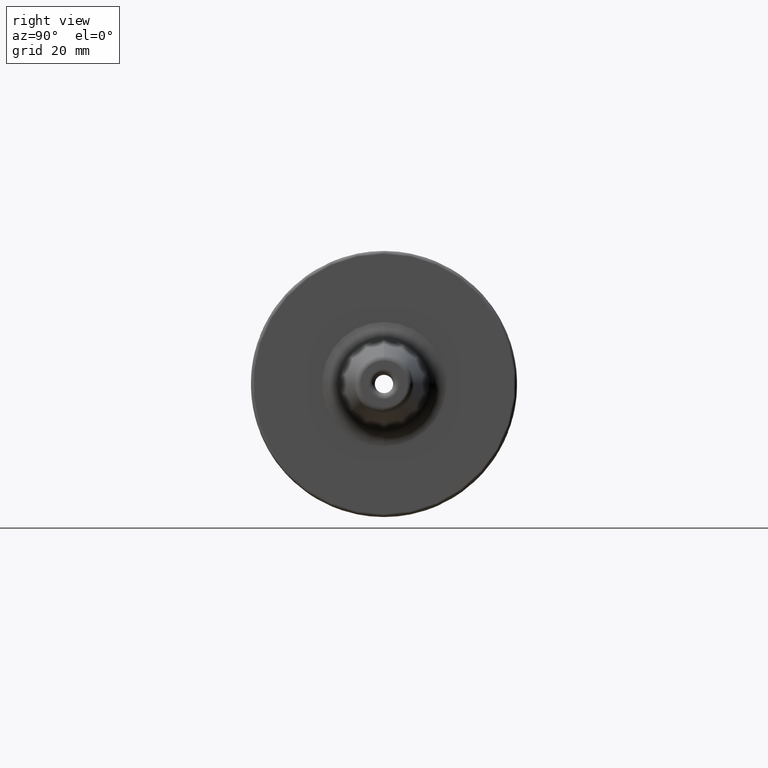
[diagram: clean part render]
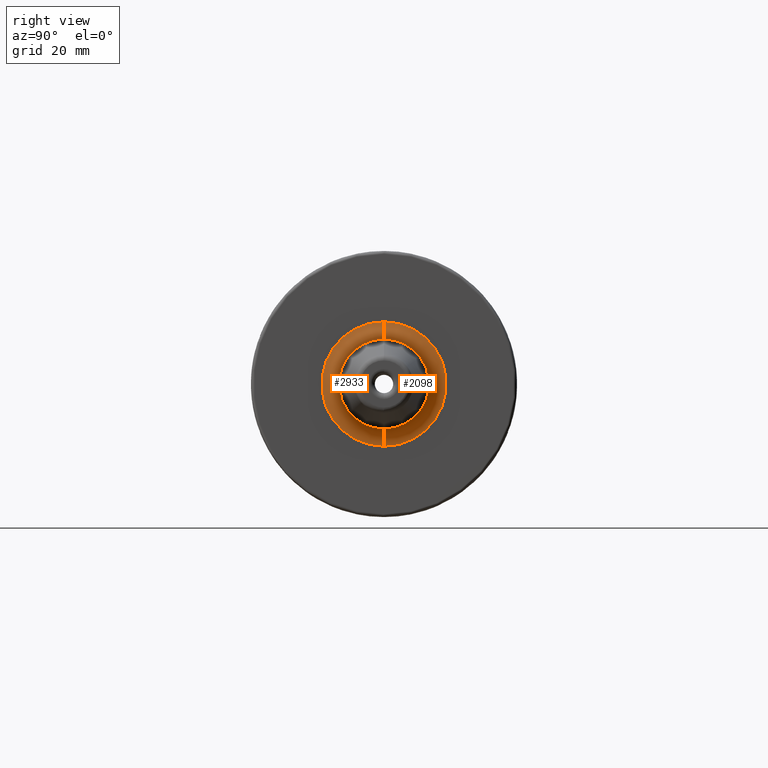
[diagram: same view with one multi-face feature highlighted, each face labeled with its STEP entity id]
A machine part, right view. The highlighted faces form ONE feature: a constant-radius fillet chain: 2 tangent blend faces with common blend radius 3 mm. The faces share edges in the B-rep.
Their STEP definitions:
[1] entity #2098 (Torus):
#425=CARTESIAN_POINT('',(2.476462271282E1,0.E0,0.E0));
#426=DIRECTION('',(1.E0,0.E0,0.E0));
#427=DIRECTION('',(0.E0,0.E0,-1.E0));
#428=AXIS2_PLACEMENT_3D('',#425,#426,#427);
#440=CARTESIAN_POINT('',(2.2E1,0.E0,0.E0));
#441=DIRECTION('',(1.E0,0.E0,0.E0));
#442=DIRECTION('',(0.E0,0.E0,-1.E0));
#443=AXIS2_PLACEMENT_3D('',#440,#441,#442);
#1172=CARTESIAN_POINT('',(2.5E1,0.E0,1.076383633431E1));
#1173=DIRECTION('',(0.E0,1.E0,0.E0));
#1174=DIRECTION('',(-7.845909572785E-2,0.E0,-9.969173337331E-1));
#1175=AXIS2_PLACEMENT_3D('',#1172,#1173,#1174);
#1182=CARTESIAN_POINT('',(2.5E1,0.E0,-1.076383633431E1));
#1183=DIRECTION('',(0.E0,-1.E0,0.E0));
#1184=DIRECTION('',(-7.845909572785E-2,0.E0,9.969173337331E-1));
#1185=AXIS2_PLACEMENT_3D('',#1182,#1183,#1184);
#1410=CARTESIAN_POINT('',(2.476462271282E1,0.E0,-7.773084333111E0));
#1411=VERTEX_POINT('',#1410);
#1424=CARTESIAN_POINT('',(2.476462271282E1,0.E0,7.773084333111E0));
#1425=VERTEX_POINT('',#1424);
#1426=CARTESIAN_POINT('',(2.2E1,0.E0,-1.076383633431E1));
#1427=CARTESIAN_POINT('',(2.2E1,0.E0,1.076383633431E1));
#1428=VERTEX_POINT('',#1426);
#1429=VERTEX_POINT('',#1427);
#2084=CARTESIAN_POINT('',(2.5E1,0.E0,0.E0));
#2085=DIRECTION('',(1.E0,0.E0,0.E0));
#2086=DIRECTION('',(0.E0,0.E0,1.E0));
#2087=AXIS2_PLACEMENT_3D('',#2084,#2085,#2086);
#2088=TOROIDAL_SURFACE('',#2087,1.076383633431E1,3.E0);
#2090=ORIENTED_EDGE('',*,*,#2089,.F.);
#2092=ORIENTED_EDGE('',*,*,#2091,.F.);
#2093=ORIENTED_EDGE('',*,*,#2079,.T.);
#2095=ORIENTED_EDGE('',*,*,#2094,.T.);
#2096=EDGE_LOOP('',(#2090,#2092,#2093,#2095));
#2097=FACE_OUTER_BOUND('',#2096,.F.);
#2098=ADVANCED_FACE('',(#2097),#2088,.F.);
#429=CIRCLE('',#428,7.773084333111E0);
#444=CIRCLE('',#443,1.076383633431E1);
#1176=CIRCLE('',#1175,3.E0);
#1186=CIRCLE('',#1185,3.E0);
#2079=EDGE_CURVE('',#1411,#1425,#429,.T.);
#2089=EDGE_CURVE('',#1428,#1429,#444,.T.);
#2091=EDGE_CURVE('',#1411,#1428,#1186,.T.);
#2094=EDGE_CURVE('',#1425,#1429,#1176,.T.);
[2] entity #2933 (Torus):
#445=CARTESIAN_POINT('',(2.2E1,0.E0,0.E0));
#446=DIRECTION('',(1.E0,0.E0,0.E0));
#447=DIRECTION('',(0.E0,0.E0,1.E0));
#448=AXIS2_PLACEMENT_3D('',#445,#446,#447);
#1172=CARTESIAN_POINT('',(2.5E1,0.E0,1.076383633431E1));
#1173=DIRECTION('',(0.E0,1.E0,0.E0));
#1174=DIRECTION('',(-7.845909572785E-2,0.E0,-9.969173337331E-1));
#1175=AXIS2_PLACEMENT_3D('',#1172,#1173,#1174);
#1177=CARTESIAN_POINT('',(2.476462271282E1,0.E0,0.E0));
#1178=DIRECTION('',(-1.E0,0.E0,0.E0));
#1179=DIRECTION('',(0.E0,0.E0,-1.E0));
#1180=AXIS2_PLACEMENT_3D('',#1177,#1178,#1179);
#1182=CARTESIAN_POINT('',(2.5E1,0.E0,-1.076383633431E1));
#1183=DIRECTION('',(0.E0,-1.E0,0.E0));
#1184=DIRECTION('',(-7.845909572785E-2,0.E0,9.969173337331E-1));
#1185=AXIS2_PLACEMENT_3D('',#1182,#1183,#1184);
#1410=CARTESIAN_POINT('',(2.476462271282E1,0.E0,-7.773084333111E0));
#1411=VERTEX_POINT('',#1410);
#1424=CARTESIAN_POINT('',(2.476462271282E1,0.E0,7.773084333111E0));
#1425=VERTEX_POINT('',#1424);
#1426=CARTESIAN_POINT('',(2.2E1,0.E0,-1.076383633431E1));
#1427=CARTESIAN_POINT('',(2.2E1,0.E0,1.076383633431E1));
#1428=VERTEX_POINT('',#1426);
#1429=VERTEX_POINT('',#1427);
#2922=CARTESIAN_POINT('',(2.5E1,0.E0,0.E0));
#2923=DIRECTION('',(1.E0,0.E0,0.E0));
#2924=DIRECTION('',(0.E0,0.E0,1.E0));
#2925=AXIS2_PLACEMENT_3D('',#2922,#2923,#2924);
#2926=TOROIDAL_SURFACE('',#2925,1.076383633431E1,3.E0);
#2927=ORIENTED_EDGE('',*,*,#2111,.F.);
#2928=ORIENTED_EDGE('',*,*,#2094,.F.);
#2929=ORIENTED_EDGE('',*,*,#2063,.F.);
#2930=ORIENTED_EDGE('',*,*,#2091,.T.);
#2931=EDGE_LOOP('',(#2927,#2928,#2929,#2930));
#2932=FACE_OUTER_BOUND('',#2931,.F.);
#2933=ADVANCED_FACE('',(#2932),#2926,.F.);
#449=CIRCLE('',#448,1.076383633431E1);
#1176=CIRCLE('',#1175,3.E0);
#1181=CIRCLE('',#1180,7.773084333111E0);
#1186=CIRCLE('',#1185,3.E0);
#2063=EDGE_CURVE('',#1411,#1425,#1181,.T.);
#2091=EDGE_CURVE('',#1411,#1428,#1186,.T.);
#2094=EDGE_CURVE('',#1425,#1429,#1176,.T.);
#2111=EDGE_CURVE('',#1429,#1428,#449,.T.);